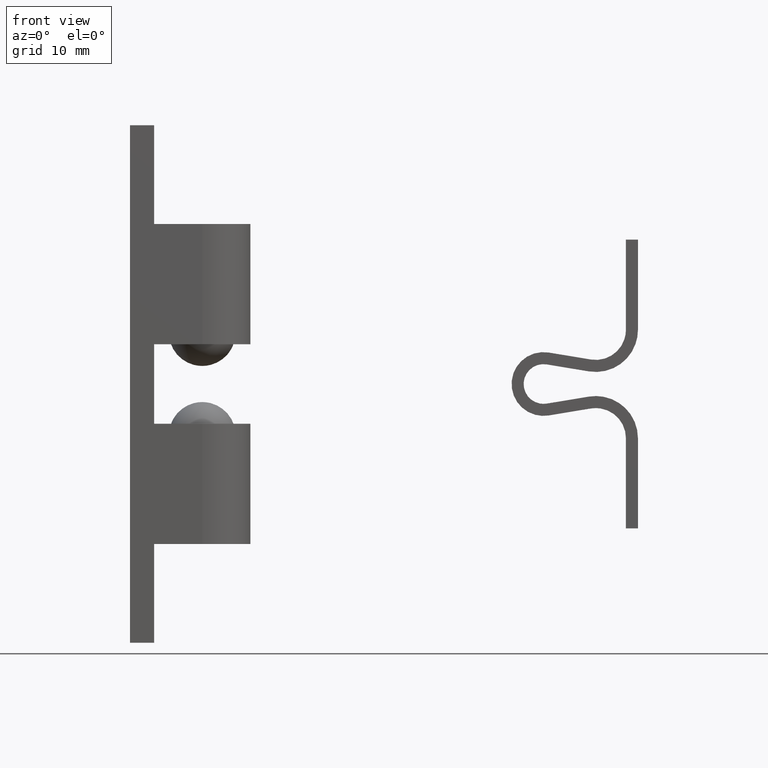
[diagram: clean part render]
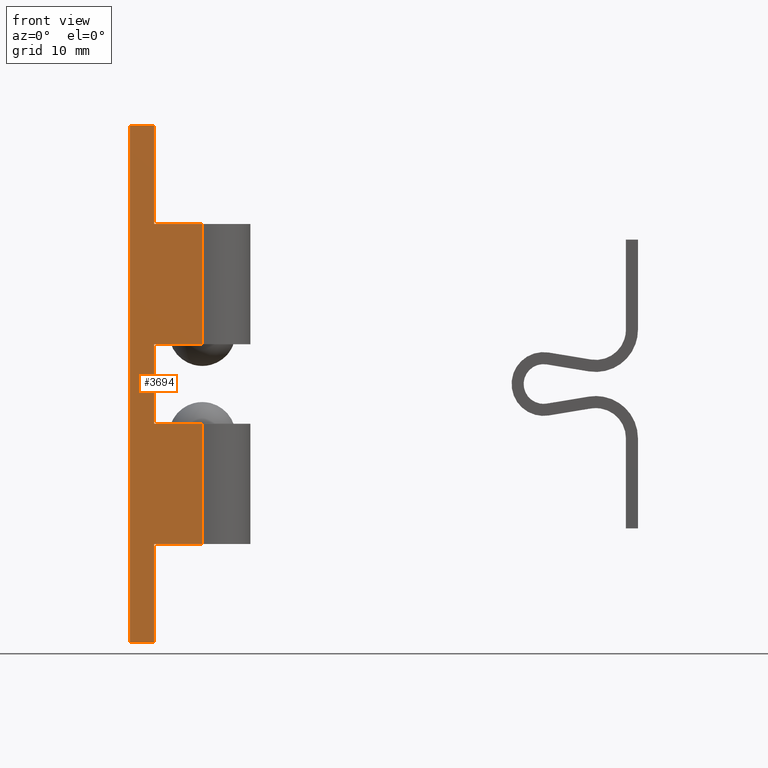
[diagram: same view with one face highlighted and labeled with its STEP entity id]
A machine part, front view. The second image highlights one B-rep face of the part: STEP entity #3694.
In plain terms, the highlighted face is a freeform B-spline surface patch.
Its self-contained STEP definition (entity closure, byte-faithful):
#3359=CARTESIAN_POINT('',(2.0,-4.0,3.300000000000000));
#3360=VERTEX_POINT('',#3359);
#3366=CARTESIAN_POINT('',(2.0,-4.0,-3.300000000000000));
#3367=VERTEX_POINT('',#3366);
#3368=CARTESIAN_POINT('',(2.0,-4.0,3.300000000000000));
#3369=CARTESIAN_POINT('',(2.0,-4.0,-3.300000000000000));
#3370=QUASI_UNIFORM_CURVE('',1,(#3368,#3369),.UNSPECIFIED.,.F.,.U.);
#3371=EDGE_CURVE('',#3360,#3367,#3370,.T.);
#3386=CARTESIAN_POINT('',(2.0,-4.0,-21.500000000000000));
#3387=VERTEX_POINT('',#3386);
#3395=CARTESIAN_POINT('',(4.898425E-016,-4.0,-21.500000000000000));
#3396=VERTEX_POINT('',#3395);
#3397=CARTESIAN_POINT('',(4.898425E-016,-4.0,-21.500000000000000));
#3398=CARTESIAN_POINT('',(2.0,-4.0,-21.500000000000000));
#3399=QUASI_UNIFORM_CURVE('',1,(#3397,#3398),.UNSPECIFIED.,.F.,.U.);
#3400=EDGE_CURVE('',#3396,#3387,#3399,.T.);
#3437=CARTESIAN_POINT('',(6.0,-4.0,-3.300000000000000));
#3438=VERTEX_POINT('',#3437);
#3454=CARTESIAN_POINT('',(6.0,-4.0,-13.300000000000001));
#3455=VERTEX_POINT('',#3454);
#3456=CARTESIAN_POINT('',(6.0,-4.0,-13.300000000000001));
#3457=CARTESIAN_POINT('',(6.0,-4.0,-3.300000000000000));
#3458=QUASI_UNIFORM_CURVE('',1,(#3456,#3457),.UNSPECIFIED.,.F.,.U.);
#3459=EDGE_CURVE('',#3455,#3438,#3458,.T.);
#3491=CARTESIAN_POINT('',(4.898425E-016,-4.0,21.499900000000000));
#3492=VERTEX_POINT('',#3491);
#3493=CARTESIAN_POINT('',(2.0,-4.0,21.499900000000000));
#3494=VERTEX_POINT('',#3493);
#3495=CARTESIAN_POINT('',(4.898425E-016,-4.0,21.499900000000000));
#3496=CARTESIAN_POINT('',(2.0,-4.0,21.499900000000000));
#3497=QUASI_UNIFORM_CURVE('',1,(#3495,#3496),.UNSPECIFIED.,.F.,.U.);
#3498=EDGE_CURVE('',#3492,#3494,#3497,.T.);
#3600=CARTESIAN_POINT('',(6.0,-4.0,13.300000000000001));
#3601=VERTEX_POINT('',#3600);
#3617=CARTESIAN_POINT('',(6.0,-4.0,3.300000000000000));
#3618=VERTEX_POINT('',#3617);
#3619=CARTESIAN_POINT('',(6.0,-4.0,3.300000000000000));
#3620=CARTESIAN_POINT('',(6.0,-4.0,13.300000000000001));
#3621=QUASI_UNIFORM_CURVE('',1,(#3619,#3620),.UNSPECIFIED.,.F.,.U.);
#3622=EDGE_CURVE('',#3618,#3601,#3621,.T.);
#3643=CARTESIAN_POINT('',(-0.299699988370836,-4.0,23.647745728962452));
#3644=CARTESIAN_POINT('',(-0.299699988370836,-4.0,-23.647846113411500));
#3645=CARTESIAN_POINT('',(6.299700149303377,-4.0,23.647745728962452));
#3646=CARTESIAN_POINT('',(6.299700149303377,-4.0,-23.647846113411500));
#3647=B_SPLINE_SURFACE_WITH_KNOTS('',1,1,((#3643,#3645),(#3644,#3646)),.UNSPECIFIED.,.F.,.F.,.U.,(2,2),(2,2),(0.0,47.295591842373952),(0.0,6.599400137674214),.UNSPECIFIED.);
#3648=CARTESIAN_POINT('',(2.0,-4.0,13.300000000000001));
#3649=VERTEX_POINT('',#3648);
#3650=CARTESIAN_POINT('',(2.0,-4.0,13.300000000000001));
#3651=CARTESIAN_POINT('',(6.0,-4.0,13.300000000000001));
#3652=QUASI_UNIFORM_CURVE('',1,(#3650,#3651),.UNSPECIFIED.,.F.,.U.);
#3653=EDGE_CURVE('',#3649,#3601,#3652,.T.);
#3654=ORIENTED_EDGE('',*,*,#3653,.F.);
#3655=CARTESIAN_POINT('',(2.0,-4.0,21.499900000000000));
#3656=CARTESIAN_POINT('',(2.0,-4.0,13.300000000000001));
#3657=QUASI_UNIFORM_CURVE('',1,(#3655,#3656),.UNSPECIFIED.,.F.,.U.);
#3658=EDGE_CURVE('',#3494,#3649,#3657,.T.);
#3659=ORIENTED_EDGE('',*,*,#3658,.F.);
#3660=ORIENTED_EDGE('',*,*,#3498,.F.);
#3661=CARTESIAN_POINT('',(4.898425E-016,-4.0,-21.500000000000000));
#3662=CARTESIAN_POINT('',(4.898425E-016,-4.0,21.499900000000000));
#3663=QUASI_UNIFORM_CURVE('',1,(#3661,#3662),.UNSPECIFIED.,.F.,.U.);
#3664=EDGE_CURVE('',#3396,#3492,#3663,.T.);
#3665=ORIENTED_EDGE('',*,*,#3664,.F.);
#3666=ORIENTED_EDGE('',*,*,#3400,.T.);
#3667=CARTESIAN_POINT('',(2.0,-4.0,-13.300000000000001));
#3668=VERTEX_POINT('',#3667);
#3669=CARTESIAN_POINT('',(2.0,-4.0,-13.300000000000001));
#3670=CARTESIAN_POINT('',(2.0,-4.0,-21.500000000000000));
#3671=QUASI_UNIFORM_CURVE('',1,(#3669,#3670),.UNSPECIFIED.,.F.,.U.);
#3672=EDGE_CURVE('',#3668,#3387,#3671,.T.);
#3673=ORIENTED_EDGE('',*,*,#3672,.F.);
#3674=CARTESIAN_POINT('',(6.0,-4.0,-13.300000000000001));
#3675=CARTESIAN_POINT('',(2.0,-4.0,-13.300000000000001));
#3676=QUASI_UNIFORM_CURVE('',1,(#3674,#3675),.UNSPECIFIED.,.F.,.U.);
#3677=EDGE_CURVE('',#3455,#3668,#3676,.T.);
#3678=ORIENTED_EDGE('',*,*,#3677,.F.);
#3679=ORIENTED_EDGE('',*,*,#3459,.T.);
#3680=CARTESIAN_POINT('',(2.0,-4.0,-3.300000000000000));
#3681=CARTESIAN_POINT('',(6.0,-4.0,-3.300000000000000));
#3682=QUASI_UNIFORM_CURVE('',1,(#3680,#3681),.UNSPECIFIED.,.F.,.U.);
#3683=EDGE_CURVE('',#3367,#3438,#3682,.T.);
#3684=ORIENTED_EDGE('',*,*,#3683,.F.);
#3685=ORIENTED_EDGE('',*,*,#3371,.F.);
#3686=CARTESIAN_POINT('',(6.0,-4.0,3.300000000000000));
#3687=CARTESIAN_POINT('',(2.0,-4.0,3.300000000000000));
#3688=QUASI_UNIFORM_CURVE('',1,(#3686,#3687),.UNSPECIFIED.,.F.,.U.);
#3689=EDGE_CURVE('',#3618,#3360,#3688,.T.);
#3690=ORIENTED_EDGE('',*,*,#3689,.F.);
#3691=ORIENTED_EDGE('',*,*,#3622,.T.);
#3692=EDGE_LOOP('',(#3654,#3659,#3660,#3665,#3666,#3673,#3678,#3679,#3684,#3685,#3690,#3691));
#3693=FACE_OUTER_BOUND('',#3692,.T.);
#3694=ADVANCED_FACE('',(#3693),#3647,.T.);